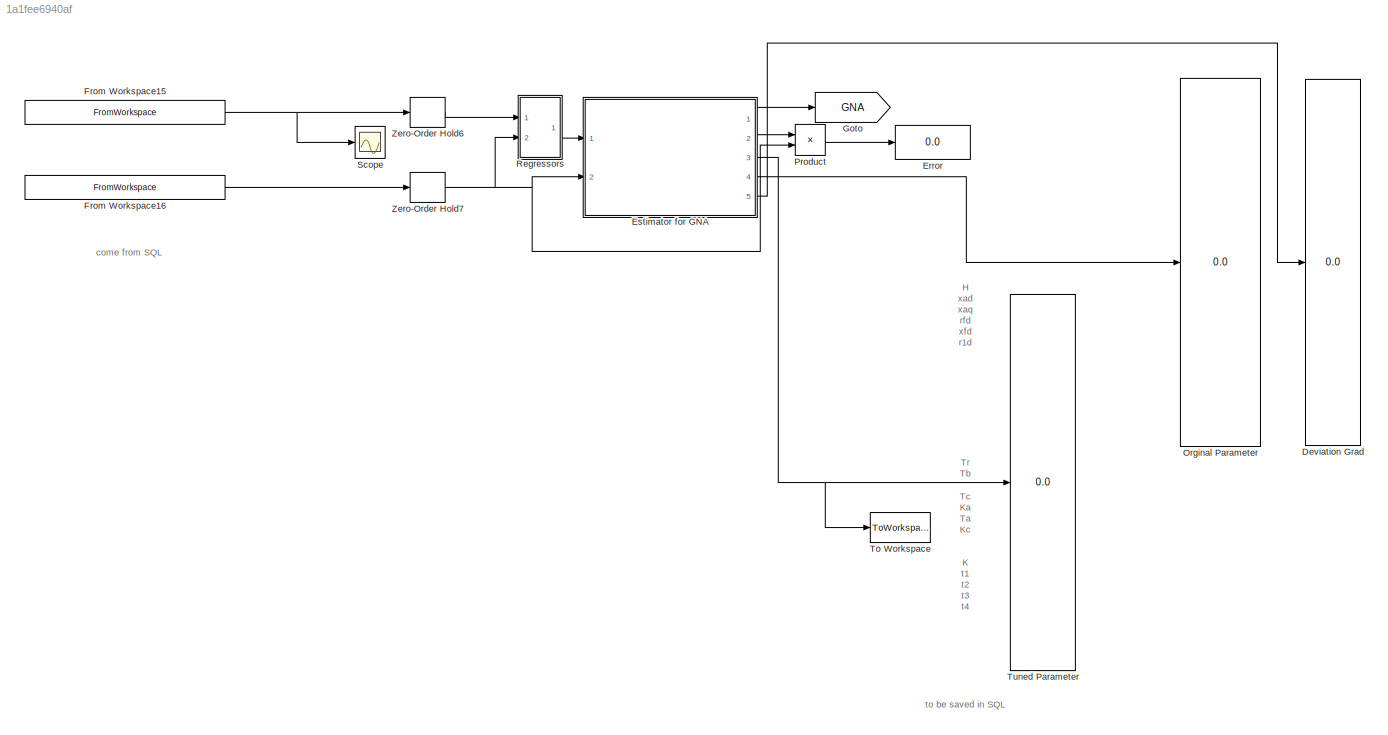
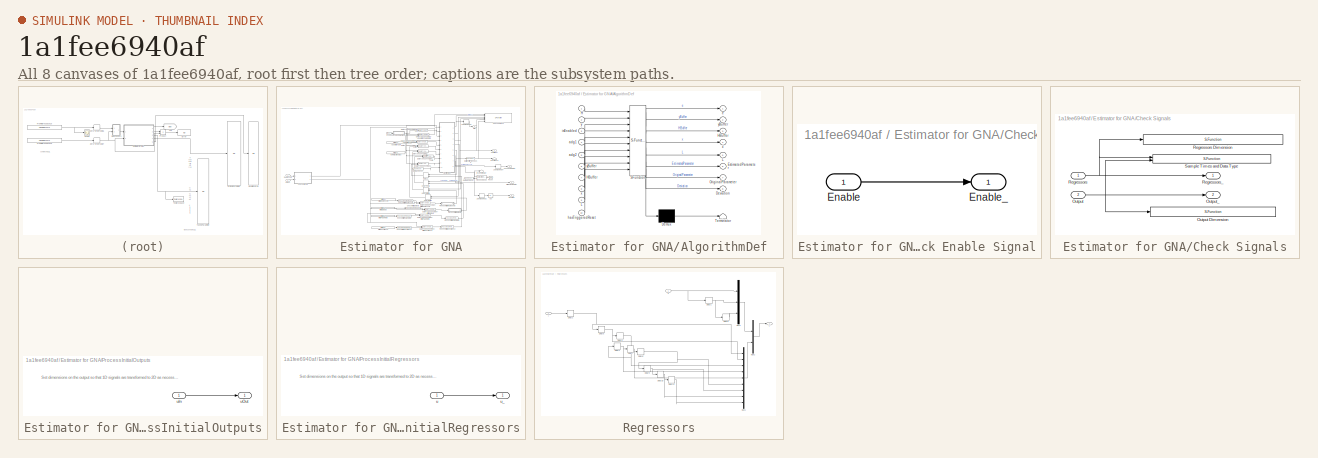
[diagram: thumbnail index - all 8 canvases of the model, root first then tree order]
MODEL slx_1a1fee6940af
KIND model
CONFIG AbsTol = auto
CONFIG EnableMultiTasking = on
CONFIG FixedStep = auto
CONFIG MaxStep = 0.1
CONFIG MinStep = 0.01
CONFIG RelTol = 1e-2
CONFIG SampleTimeConstraint = Unconstrained
CONFIG Solver = VariableStepAuto
CONFIG SolverName = VariableStepAuto
CONFIG StartTime = 0.0
CONFIG StopTime = 20
WORKSPACE source: MAT-file member
WORKSPACE Ts = 0.001
BLOCK [Display] Deviation Grad
  Decimation = 1
  Ports = [1]
BLOCK [Display] Error
  Decimation = 1
  Ports = [1]
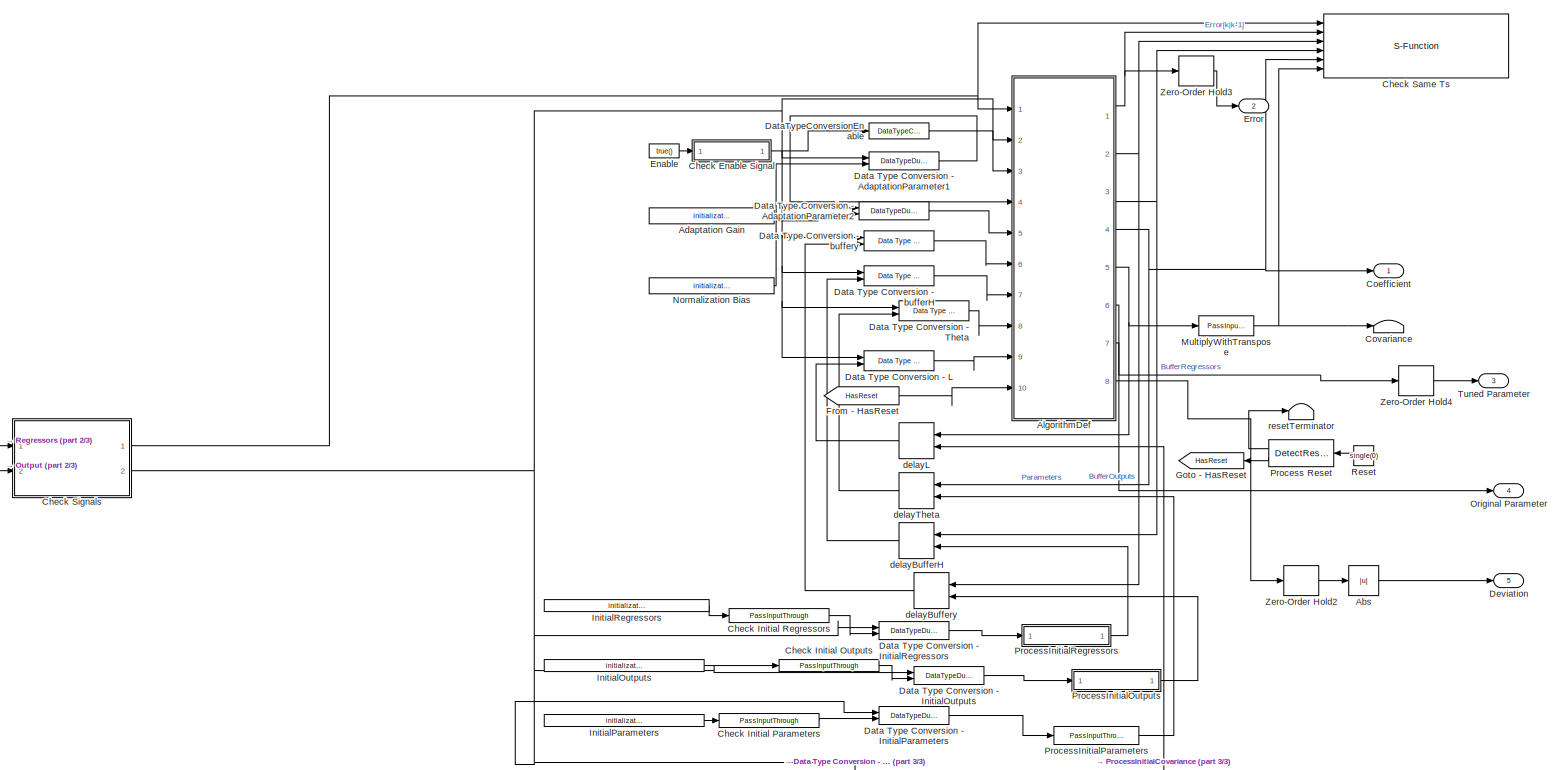
[diagram: Estimator for GNA - part 1/3, most of the canvas]
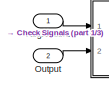
[diagram: Estimator for GNA - part 2/3, middle left region]
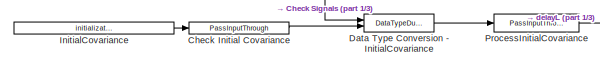
[diagram: Estimator for GNA - part 3/3, bottom center region]
BLOCK [SubSystem] Estimator for GNA
  Ports = [2, 5]
  RequestExecContextInheritance = off
BLOCK [Abs] Estimator for GNA/Abs
  SaturateOnIntegerOverflow = off
BLOCK [Constant] Estimator for GNA/Adaptation Gain
  OutDataTypeStr = Inherit: Inherit via back propagation
  Value = initializationParams.adg1
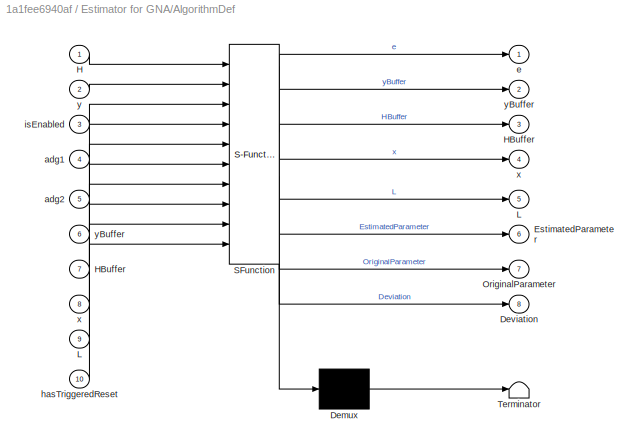
BLOCK [SubSystem] Estimator for GNA/AlgorithmDef
  ErrorFcn = Stateflow.Translate.translate
  PermitHierarchicalResolution = ExplicitOnly
  Ports = [10, 8]
  RequestExecContextInheritance = off
  SFBlockType = MATLAB Function
  SystemSampleTime = Ts
  TreatAsAtomicUnit = on
BLOCK [Demux] Estimator for GNA/AlgorithmDef/ Demux 
  Outputs = 1
  Ports = [1, 1]
BLOCK [S-Function] Estimator for GNA/AlgorithmDef/ SFunction 
  EnableBusSupport = on
  FunctionName = sf_sfun
  Parameters = algorithmParams
  PortCounts = [10 9]
  Ports = [10, 9]
  SFcnIsStateOwnerBlock = off
  SFunctionDeploymentMode = off
  Tag = Stateflow S-Function Online_Estimation_Synchrongenerator_NEW_2018a 2
BLOCK [Terminator] Estimator for GNA/AlgorithmDef/ Terminator 
BLOCK [Outport] Estimator for GNA/AlgorithmDef/Deviation
  IconDisplay = Port number
  Port = 8
  VectorParamsAs1DForOutWhenUnconnected = on
BLOCK [Outport] Estimator for GNA/AlgorithmDef/EstimatedParameter
  IconDisplay = Port number
  Port = 6
  VectorParamsAs1DForOutWhenUnconnected = on
BLOCK [Inport] Estimator for GNA/AlgorithmDef/H
  IconDisplay = Port number
BLOCK [Outport] Estimator for GNA/AlgorithmDef/HBuffer
  IconDisplay = Port number
  Port = 3
BLOCK [Inport] Estimator for GNA/AlgorithmDef/HBuffer 
  IconDisplay = Port number
  Port = 7
BLOCK [Outport] Estimator for GNA/AlgorithmDef/L
  IconDisplay = Port number
  Port = 5
BLOCK [Inport] Estimator for GNA/AlgorithmDef/L 
  IconDisplay = Port number
  Port = 9
BLOCK [Outport] Estimator for GNA/AlgorithmDef/OriginalParameter
  IconDisplay = Port number
  Port = 7
  VectorParamsAs1DForOutWhenUnconnected = on
BLOCK [Inport] Estimator for GNA/AlgorithmDef/adg1
  IconDisplay = Port number
  Port = 4
BLOCK [Inport] Estimator for GNA/AlgorithmDef/adg2
  IconDisplay = Port number
  Port = 5
BLOCK [Outport] Estimator for GNA/AlgorithmDef/e
  IconDisplay = Port number
BLOCK [Inport] Estimator for GNA/AlgorithmDef/hasTriggeredReset
  IconDisplay = Port number
  Port = 10
BLOCK [Inport] Estimator for GNA/AlgorithmDef/isEnabled
  IconDisplay = Port number
  Port = 3
BLOCK [Outport] Estimator for GNA/AlgorithmDef/x
  IconDisplay = Port number
  Port = 4
BLOCK [Inport] Estimator for GNA/AlgorithmDef/x 
  IconDisplay = Port number
  Port = 8
BLOCK [Inport] Estimator for GNA/AlgorithmDef/y
  IconDisplay = Port number
  Port = 2
BLOCK [Outport] Estimator for GNA/AlgorithmDef/yBuffer
  IconDisplay = Port number
  Port = 2
BLOCK [Inport] Estimator for GNA/AlgorithmDef/yBuffer 
  IconDisplay = Port number
  Port = 6
BLOCK [SubSystem] Estimator for GNA/Check Enable Signal
  Ports = [1, 1]
  RequestExecContextInheritance = off
BLOCK [Inport] Estimator for GNA/Check Enable Signal/Enable
  IconDisplay = Port number
BLOCK [Outport] Estimator for GNA/Check Enable Signal/Enable_
  IconDisplay = Port number
BLOCK [Reference] Estimator for GNA/Check Initial Covariance  REF=ctrlSharedLib/Utilities/PassInputThrough
  Ports = [1, 1]
  SourceBlock = ctrlSharedLib/Utilities/PassInputThrough
  SourceProductBaseCode = CT
  SourceProductName = Control System Toolbox
BLOCK [Reference] Estimator for GNA/Check Initial Outputs  REF=ctrlSharedLib/Utilities/PassInputThrough
  Ports = [1, 1]
  SourceBlock = ctrlSharedLib/Utilities/PassInputThrough
  SourceProductBaseCode = CT
  SourceProductName = Control System Toolbox
BLOCK [Reference] Estimator for GNA/Check Initial Parameters  REF=ctrlSharedLib/Utilities/PassInputThrough
  Ports = [1, 1]
  SourceBlock = ctrlSharedLib/Utilities/PassInputThrough
  SourceProductBaseCode = CT
  SourceProductName = Control System Toolbox
BLOCK [Reference] Estimator for GNA/Check Initial Regressors  REF=ctrlSharedLib/Utilities/PassInputThrough
  Ports = [1, 1]
  SourceBlock = ctrlSharedLib/Utilities/PassInputThrough
  SourceProductBaseCode = CT
  SourceProductName = Control System Toolbox
BLOCK [S-Function] Estimator for GNA/Check Same Ts
  EnableBusSupport = off
  FunctionName = idRecursiveEstimationCheckSameTs
  Parameters = get_param(gcbh,'Parent'), uint16(6)
  Ports = [6]
  SFcnIsStateOwnerBlock = off
  SFunctionDeploymentMode = off
BLOCK [SubSystem] Estimator for GNA/Check Signals
  Ports = [2, 2]
  RequestExecContextInheritance = off
BLOCK [Inport] Estimator for GNA/Check Signals/Output
  IconDisplay = Port number
  Port = 2
BLOCK [S-Function] Estimator for GNA/Check Signals/Output Dimension
  EnableBusSupport = off
  FunctionName = idRecursiveEstimationCheckSignalDimensionOutput
  Parameters = csp.estimatorBlockPath, csp.isUsingFrames
  Ports = [1]
  SFcnIsStateOwnerBlock = off
  SFunctionDeploymentMode = off
BLOCK [Outport] Estimator for GNA/Check Signals/Output_
  IconDisplay = Port number
  Port = 2
BLOCK [Inport] Estimator for GNA/Check Signals/Regressors
  IconDisplay = Port number
BLOCK [S-Function] Estimator for GNA/Check Signals/Regressors Dimension
  EnableBusSupport = off
  FunctionName = idRecursiveEstimationCheckSignalDimensionRLSRegressors
  Parameters = csp.estimatorBlockPath, csp.isInitialEstimateSourceInternal, algorithmParams.nParameters, csp.isUsingFrames
  Ports = [1]
  SFcnIsStateOwnerBlock = off
  SFunctionDeploymentMode = off
BLOCK [Outport] Estimator for GNA/Check Signals/Regressors_
  IconDisplay = Port number
BLOCK [S-Function] Estimator for GNA/Check Signals/Sample Times and Data Type
  EnableBusSupport = off
  FunctionName = idRecursiveEstimationCheckSignalTsAndDataType
  Parameters = csp.estimatorBlockPath, Ts, 'Regressors', 'Output',algorithmParams.nParameters
  Ports = [2]
  SFcnIsStateOwnerBlock = off
  SFunctionDeploymentMode = off
BLOCK [Outport] Estimator for GNA/Coefficient
  IconDisplay = Port number
  SignalType = real
  VarSizeSig = No
BLOCK [Terminator] Estimator for GNA/Covariance
BLOCK [Reference] Estimator for GNA/Data Type Conversion - AdaptationParameter1  REF=ctrlSharedLib/Utilities/DataTypeDuplicateAndOutput
  Ports = [2, 1]
  SourceBlock = ctrlSharedLib/Utilities/DataTypeDuplicateAndOutput
  SourceProductBaseCode = CT
  SourceProductName = Control System Toolbox
  SourceType = ctrlDataTypeDuplicateAndOutput
BLOCK [Reference] Estimator for GNA/Data Type Conversion - AdaptationParameter2  REF=ctrlSharedLib/Utilities/DataTypeDuplicateAndOutput
  Ports = [2, 1]
  SourceBlock = ctrlSharedLib/Utilities/DataTypeDuplicateAndOutput
  SourceProductBaseCode = CT
  SourceProductName = Control System Toolbox
  SourceType = ctrlDataTypeDuplicateAndOutput
BLOCK [Reference] Estimator for GNA/Data Type Conversion - InitialCovariance  REF=ctrlSharedLib/Utilities/DataTypeDuplicateAndOutput
  Ports = [2, 1]
  SourceBlock = ctrlSharedLib/Utilities/DataTypeDuplicateAndOutput
  SourceProductBaseCode = CT
  SourceProductName = Control System Toolbox
  SourceType = ctrlDataTypeDuplicateAndOutput
BLOCK [Reference] Estimator for GNA/Data Type Conversion - InitialOutputs  REF=ctrlSharedLib/Utilities/DataTypeDuplicateAndOutput
  Ports = [2, 1]
  SourceBlock = ctrlSharedLib/Utilities/DataTypeDuplicateAndOutput
  SourceProductBaseCode = CT
  SourceProductName = Control System Toolbox
  SourceType = ctrlDataTypeDuplicateAndOutput
BLOCK [Reference] Estimator for GNA/Data Type Conversion - InitialParameters  REF=ctrlSharedLib/Utilities/DataTypeDuplicateAndOutput
  Ports = [2, 1]
  SourceBlock = ctrlSharedLib/Utilities/DataTypeDuplicateAndOutput
  SourceProductBaseCode = CT
  SourceProductName = Control System Toolbox
  SourceType = ctrlDataTypeDuplicateAndOutput
BLOCK [Reference] Estimator for GNA/Data Type Conversion - InitialRegressors  REF=ctrlSharedLib/Utilities/DataTypeDuplicateAndOutput
  Ports = [2, 1]
  SourceBlock = ctrlSharedLib/Utilities/DataTypeDuplicateAndOutput
  SourceProductBaseCode = CT
  SourceProductName = Control System Toolbox
  SourceType = ctrlDataTypeDuplicateAndOutput
BLOCK [Reference] Estimator for GNA/Data Type Conversion - L  REF=simulink/Signal
Attributes/Data Type
Conversion
Inherited
  Ports = [2, 1]
  SourceBlock = simulink/Signal\nAttributes/Data Type\nConversion\nInherited
  SourceProductBaseCode = SL
  SourceProductName = Simulink
  SourceType = Conversion Inherited
BLOCK [Reference] Estimator for GNA/Data Type Conversion - Theta  REF=simulink/Signal
Attributes/Data Type
Conversion
Inherited
  Ports = [2, 1]
  SourceBlock = simulink/Signal\nAttributes/Data Type\nConversion\nInherited
  SourceProductBaseCode = SL
  SourceProductName = Simulink
  SourceType = Conversion Inherited
BLOCK [Reference] Estimator for GNA/Data Type Conversion - bufferH  REF=simulink/Signal
Attributes/Data Type
Conversion
Inherited
  Ports = [2, 1]
  SourceBlock = simulink/Signal\nAttributes/Data Type\nConversion\nInherited
  SourceProductBaseCode = SL
  SourceProductName = Simulink
  SourceType = Conversion Inherited
BLOCK [Reference] Estimator for GNA/Data Type Conversion - buffery  REF=simulink/Signal
Attributes/Data Type
Conversion
Inherited
  Ports = [2, 1]
  SourceBlock = simulink/Signal\nAttributes/Data Type\nConversion\nInherited
  SourceProductBaseCode = SL
  SourceProductName = Simulink
  SourceType = Conversion Inherited
BLOCK [DataTypeConversion] Estimator for GNA/DataTypeConversionEnable
  OutDataTypeStr = boolean
  RndMeth = Floor
  SaturateOnIntegerOverflow = off
BLOCK [Outport] Estimator for GNA/Deviation
  IconDisplay = Port number
  Port = 5
  VectorParamsAs1DForOutWhenUnconnected = on
BLOCK [Constant] Estimator for GNA/Enable
  OutDataTypeStr = boolean
  Value = true()
BLOCK [Outport] Estimator for GNA/Error
  IconDisplay = Port number
  Port = 2
  VectorParamsAs1DForOutWhenUnconnected = on
BLOCK [From] Estimator for GNA/From - HasReset
  GotoTag = HasReset
BLOCK [Goto] Estimator for GNA/Goto - HasReset
  GotoTag = HasReset
BLOCK [Constant] Estimator for GNA/InitialCovariance
  OutDataTypeStr = Inherit: Inherit via back propagation
  Value = initializationParams.L0
BLOCK [Constant] Estimator for GNA/InitialOutputs
  OutDataTypeStr = Inherit: Inherit via back propagation
  Value = initializationParams.initialOutputs
  VectorParams1D = off
BLOCK [Constant] Estimator for GNA/InitialParameters
  OutDataTypeStr = Inherit: Inherit via back propagation
  Value = initializationParams.theta0
  VectorParams1D = off
BLOCK [Constant] Estimator for GNA/InitialRegressors
  OutDataTypeStr = Inherit: Inherit via back propagation
  Value = initializationParams.initialRegressors
  VectorParams1D = off
BLOCK [Reference] Estimator for GNA/MultiplyWithTranspose  REF=ctrlSharedLib/Utilities/PassInputThrough
  Ports = [1, 1]
  SourceBlock = ctrlSharedLib/Utilities/PassInputThrough
  SourceProductBaseCode = CT
  SourceProductName = Control System Toolbox
BLOCK [Constant] Estimator for GNA/Normalization Bias
  OutDataTypeStr = Inherit: Inherit via back propagation
  Value = initializationParams.adg2
BLOCK [Outport] Estimator for GNA/Original Parameter
  IconDisplay = Port number
  Port = 4
  VectorParamsAs1DForOutWhenUnconnected = on
BLOCK [Inport] Estimator for GNA/Output
  IconDisplay = Port number
  Port = 2
  SignalType = real
  VarSizeSig = No
BLOCK [Reference] Estimator for GNA/Process Reset  REF=ctrlSharedLib/Utilities/DetectReset
  Ports = [1, 2]
  SourceBlock = ctrlSharedLib/Utilities/DetectReset
  SourceProductBaseCode = CT
  SourceProductName = Control System Toolbox
BLOCK [Reference] Estimator for GNA/ProcessInitialCovariance  REF=ctrlSharedLib/Utilities/PassInputThrough
  Ports = [1, 1]
  SourceBlock = ctrlSharedLib/Utilities/PassInputThrough
  SourceProductBaseCode = CT
  SourceProductName = Control System Toolbox
BLOCK [SubSystem] Estimator for GNA/ProcessInitialOutputs
  Ports = [1, 1]
  RequestExecContextInheritance = off
BLOCK [Inport] Estimator for GNA/ProcessInitialOutputs/uIn
  IconDisplay = Port number
BLOCK [Outport] Estimator for GNA/ProcessInitialOutputs/uOut
  IconDisplay = Port number
  PortDimensions = dimParams.Outputs.yBuffer
BLOCK [Reference] Estimator for GNA/ProcessInitialParameters  REF=ctrlSharedLib/Utilities/PassInputThrough
  Ports = [1, 1]
  SourceBlock = ctrlSharedLib/Utilities/PassInputThrough
  SourceProductBaseCode = CT
  SourceProductName = Control System Toolbox
BLOCK [SubSystem] Estimator for GNA/ProcessInitialRegressors
  Ports = [1, 1]
  RequestExecContextInheritance = off
BLOCK [Inport] Estimator for GNA/ProcessInitialRegressors/u
  IconDisplay = Port number
BLOCK [Outport] Estimator for GNA/ProcessInitialRegressors/u_
  IconDisplay = Port number
  PortDimensions = dimParams.Outputs.HBuffer
BLOCK [Inport] Estimator for GNA/Regressors
  IconDisplay = Port number
  SignalType = real
  VarSizeSig = No
BLOCK [Constant] Estimator for GNA/Reset
  Value = single(0)
BLOCK [Outport] Estimator for GNA/Tuned Parameter
  IconDisplay = Port number
  Port = 3
  VectorParamsAs1DForOutWhenUnconnected = on
BLOCK [ZeroOrderHold] Estimator for GNA/Zero-Order Hold2
  SampleTime = 5
BLOCK [ZeroOrderHold] Estimator for GNA/Zero-Order Hold3
  SampleTime = 5
BLOCK [ZeroOrderHold] Estimator for GNA/Zero-Order Hold4
  SampleTime = 0.5
BLOCK [Delay] Estimator for GNA/delayBufferH
  DelayLength = 1
  InitialConditionSource = Input port
  InputPortMap = u0,p4
  Ports = [2, 1]
BLOCK [Delay] Estimator for GNA/delayBuffery
  DelayLength = 1
  InitialConditionSource = Input port
  InputPortMap = u0,p4
  Ports = [2, 1]
BLOCK [Delay] Estimator for GNA/delayL
  DelayLength = 1
  InitialConditionSource = Input port
  InputPortMap = u0,p4
  Ports = [2, 1]
BLOCK [Delay] Estimator for GNA/delayTheta
  DelayLength = 1
  InitialConditionSource = Input port
  InputPortMap = u0,p4
  Ports = [2, 1]
BLOCK [Terminator] Estimator for GNA/resetTerminator
BLOCK [FromWorkspace] From Workspace15
  VariableName = [input(:,1), input(:,2)]
  ZeroCross = on
BLOCK [FromWorkspace] From Workspace16
  VariableName = [input(:,1), input(:,3)]
  ZeroCross = on
BLOCK [Goto] Goto
  GotoTag = GNA
BLOCK [Display] Orginal Parameter
  Decimation = 1
  Ports = [1]
BLOCK [Product] Product
  InputSameDT = off
  Inputs = */
  OutDataTypeStr = Inherit: Inherit via internal rule
  Ports = [2, 1]
  RndMeth = Floor
  SaturateOnIntegerOverflow = off
BLOCK [SubSystem] Regressors
  Ports = [2, 1]
  RequestExecContextInheritance = off
BLOCK [Delay] Regressors/Delay1
  DelayLength = 1
  InitialCondition = 1
  InputPortMap = u0
  Ports = [1, 1]
  SampleTime = Ts
BLOCK [Delay] Regressors/Delay10
  DelayLength = 1
  InitialCondition = 2
  InputPortMap = u0
  Ports = [1, 1]
  SampleTime = Ts
BLOCK [Delay] Regressors/Delay11
  DelayLength = 1
  InitialCondition = 2
  InputPortMap = u0
  Ports = [1, 1]
  SampleTime = Ts
BLOCK [Delay] Regressors/Delay2
  DelayLength = 1
  InitialCondition = 2
  InputPortMap = u0
  Ports = [1, 1]
  SampleTime = Ts
BLOCK [Delay] Regressors/Delay3
  DelayLength = 1
  InitialCondition = 2
  InputPortMap = u0
  Ports = [1, 1]
  SampleTime = Ts
BLOCK [Delay] Regressors/Delay4
  DelayLength = 1
  InitialCondition = 2
  InputPortMap = u0
  Ports = [1, 1]
  SampleTime = Ts
BLOCK [Delay] Regressors/Delay5
  DelayLength = 1
  InitialCondition = 2
  InputPortMap = u0
  Ports = [1, 1]
  SampleTime = Ts
BLOCK [Delay] Regressors/Delay6
  DelayLength = 1
  InitialCondition = 1
  InputPortMap = u0
  Ports = [1, 1]
  SampleTime = Ts
BLOCK [Delay] Regressors/Delay7
  DelayLength = 1
  InitialCondition = 2
  InputPortMap = u0
  Ports = [1, 1]
  SampleTime = Ts
BLOCK [Delay] Regressors/Delay8
  DelayLength = 1
  InitialCondition = 2
  InputPortMap = u0
  Ports = [1, 1]
  SampleTime = Ts
BLOCK [Delay] Regressors/Delay9
  DelayLength = 1
  InitialCondition = 2
  InputPortMap = u0
  Ports = [1, 1]
  SampleTime = Ts
BLOCK [Mux] Regressors/Mux1
  DisplayOption = bar
  Inputs = 9
  Ports = [9, 1]
BLOCK [Mux] Regressors/Mux2
  DisplayOption = bar
  Inputs = 2
  Ports = [2, 1]
BLOCK [Mux] Regressors/Mux3
  DisplayOption = bar
  Inputs = 3
  Ports = [3, 1]
BLOCK [Outport] Regressors/r
  IconDisplay = Port number
BLOCK [Inport] Regressors/u
  IconDisplay = Port number
BLOCK [Inport] Regressors/y
  IconDisplay = Port number
  Port = 2
BLOCK [Scope] Scope
  Floating = off
  NumInputPorts = 1
  Ports = [1]
  ScopeSpecificationString = Simulink.scopes.TimeScopeBlockCfg('CurrentConfiguration', extmgr.ConfigurationSet(extmgr.Configuration('Core','General UI',true),extmgr.Configuration('Core','Source UI',true),extmgr.Configuration('Sources','WiredSimulink',true),extmgr.Configuration('Visuals','Time Domain',true,'SerializedDisplays',{struct('MinYLimReal','0.95898','MaxYLimReal','0.97852','YLabelReal','','MinYLimMag','0.95898','MaxYL...<+1432ch>
BLOCK [ToWorkspace] To Workspace
  FixptAsFi = on
  MaxDataPoints = inf
  Ports = [1]
  SampleTime = -1
  SaveFormat = Timeseries
  VariableName = simout
BLOCK [Display] Tuned Parameter
  Decimation = 1
  Ports = [1]
BLOCK [ZeroOrderHold] Zero-Order Hold6
  SampleTime = Ts
BLOCK [ZeroOrderHold] Zero-Order Hold7
  SampleTime = Ts
ANNOTATION (root): H xad xaq rfd xfd r1d x1d r1q x1q r2q x2q
ANNOTATION (root): K t1 t2 t3 t4
ANNOTATION (root): Tr Tb Tc Ka Ta Kc
ANNOTATION (root): come from SQL
ANNOTATION (root): to be saved in SQL
ANNOTATION Estimator for GNA/ProcessInitialOutputs: Set dimensions on the output so that 1D signals are transformed to 2D as necessary per the Delay block
ANNOTATION Estimator for GNA/ProcessInitialRegressors: Set dimensions on the output so that 1D signals are transformed to 2D as necessary per the Delay block
LINE Estimator for GNA:1 -> Goto:1
LINE Estimator for GNA:2 -> Product:1
NET Estimator for GNA:3 -> To Workspace:1, Tuned Parameter:1
LINE Estimator for GNA:4 -> Orginal Parameter:1
LINE Estimator for GNA:5 -> Deviation Grad:1
NET From Workspace15:1 -> Scope:1, Zero-Order Hold6:1
LINE From Workspace16:1 -> Zero-Order Hold7:1
LINE Product:1 -> Error:1
NET Regressors/Delay10:1 -> Regressors/Delay11:1, Regressors/Mux1:8
LINE Regressors/Delay11:1 -> Regressors/Mux1:9
NET Regressors/Delay1:1 -> Regressors/Delay6:1, Regressors/Mux3:2
NET Regressors/Delay2:1 -> Regressors/Delay5:1, Regressors/Mux1:1
NET Regressors/Delay3:1 -> Regressors/Delay4:1, Regressors/Mux1:3
NET Regressors/Delay4:1 -> Regressors/Delay7:1, Regressors/Mux1:4
NET Regressors/Delay5:1 -> Regressors/Delay3:1, Regressors/Mux1:2
LINE Regressors/Delay6:1 -> Regressors/Mux3:3
NET Regressors/Delay7:1 -> Regressors/Delay8:1, Regressors/Mux1:5
NET Regressors/Delay8:1 -> Regressors/Delay9:1, Regressors/Mux1:6
NET Regressors/Delay9:1 -> Regressors/Delay10:1, Regressors/Mux1:7
LINE Regressors/Mux1:1 -> Regressors/Mux2:2
LINE Regressors/Mux2:1 -> Regressors/r:1
LINE Regressors/Mux3:1 -> Regressors/Mux2:1
NET Regressors/u:1 -> Regressors/Delay1:1, Regressors/Mux3:1
LINE Regressors/y:1 -> Regressors/Delay2:1
LINE Regressors:1 -> Estimator for GNA:1
LINE Zero-Order Hold6:1 -> Regressors:1
NET Zero-Order Hold7:1 -> Estimator for GNA:2, Product:2, Regressors:2
note: NET lines group one-source signal fan-out (src -> all destinations, sorted); 1:1 wires keep LINE
CHART Estimator for GNA/AlgorithmDef states=1 transitions=1
  STATE_LABEL 'eML_blk_kernel()'
  STATE_LABEL 'SCRIPT:\nfunction [e,yBuffer,HBuffer,x,L,EstimatedParameter,OriginalParameter,Deviation] = Parameterestimation(...\n    H,y,... \n    isEnabled,adg1,adg2,... \n    yBuffer,HBuffer,x,L,... \n    hasTriggeredReset,...   \n    algorithmParams)\n\n\n\n\n\n\npersistent rlsEstimator;\nif isempty(rlsEstimator)\n    rlsEstimator = controllib.internal.blocks.rls.getEstimator(algorithmParams);\nend\n\n\nif hasTriggeredReset\n ...<+1184ch>'
